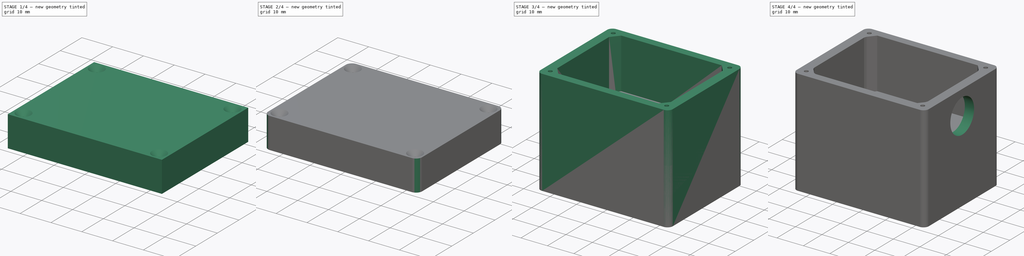
[diagram: build sequence overview — one tinted view per stage of 4, left to right]
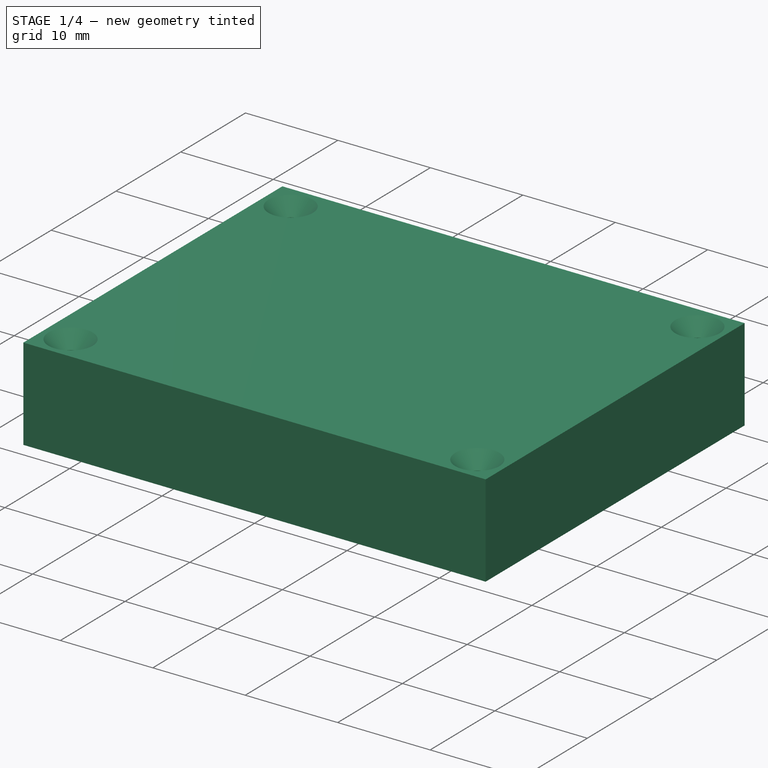
[diagram: stage 1 of 4 — iso view after this stage's code; geometry added in this stage tinted green]
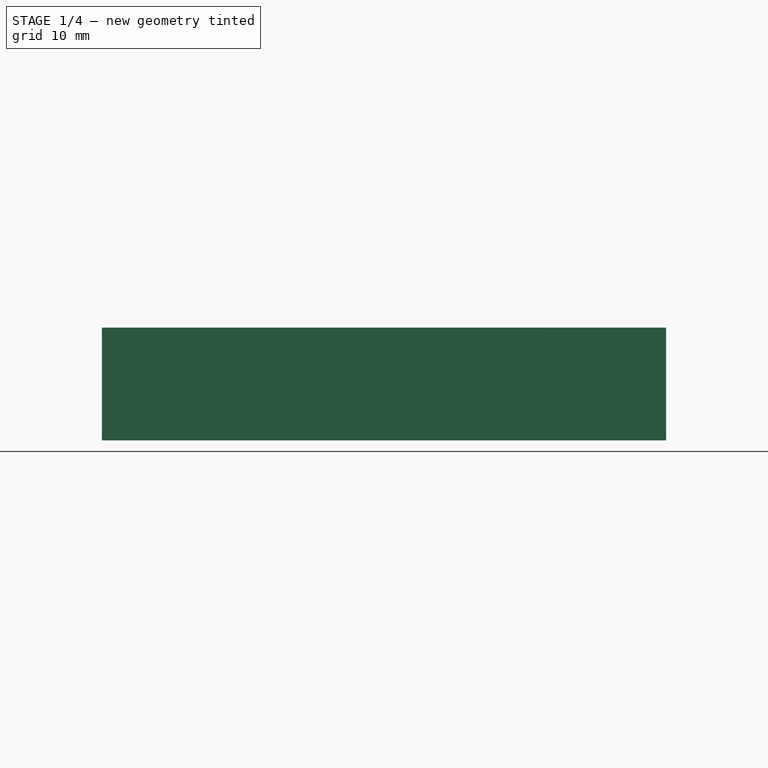
[diagram: stage 1 of 4 — front view after this stage's code; geometry added in this stage tinted green]
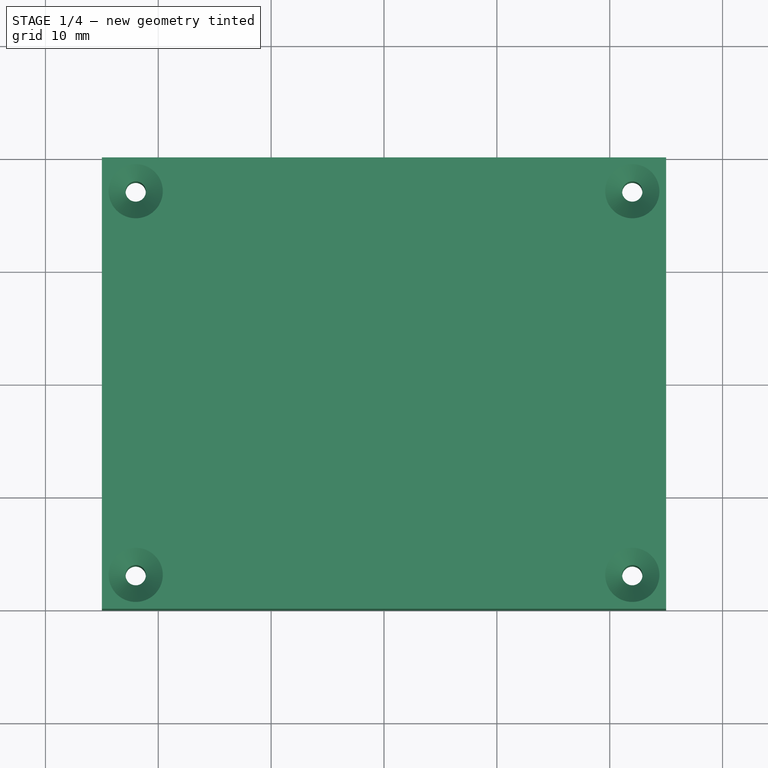
[diagram: stage 1 of 4 — top view after this stage's code; geometry added in this stage tinted green]
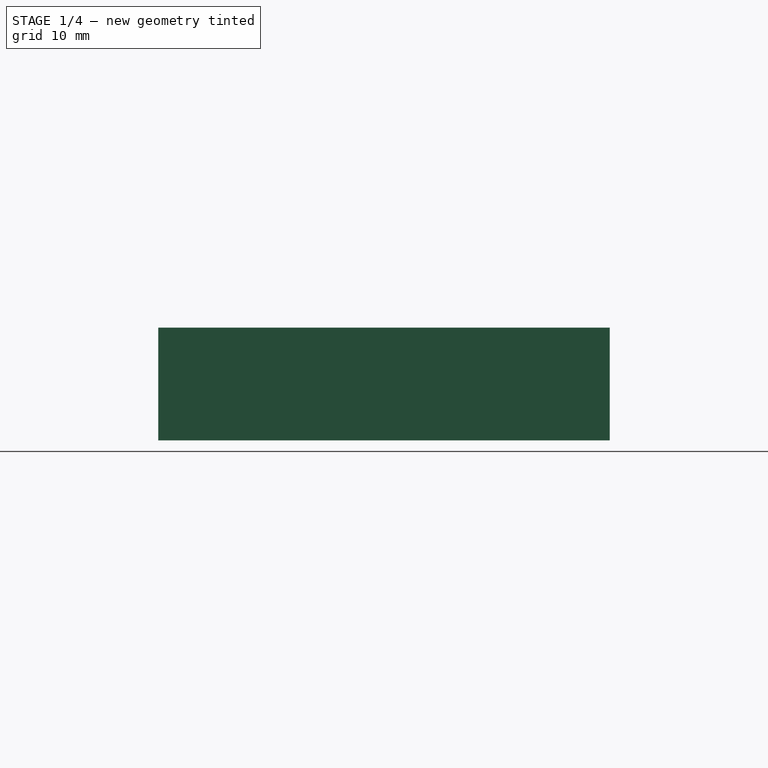
[diagram: stage 1 of 4 — right view after this stage's code; geometry added in this stage tinted green]
FCSTD DOCUMENT  (FreeCAD 0.19R24291 (Git))
Label: servo
License: All rights reserved
LicenseURL: http://en.wikipedia.org/wiki/All_rights_reserved
objects: Sketcher::SketchObject×9, PartDesign::Pocket×5, PartDesign::Pad×4, PartDesign::Chamfer×3, PartDesign::Fillet×2, PartDesign::Body×2
note: 39 computed .brp shape members not serialized (recipe doc carries the construction recipe); baked Part::Feature solids carry a one-line shape summary decoded from their .brp

FEATURE [PartDesign::Body] Body
  Group = -> [Sketch,Pad,Sketch001,Pocket,Fillet,Chamfer,Sketch002,Pocket001,Sketch003,Pocket002,Sketch004,Pad001]
  Origin = -> Origin
  Tip = -> Pad001
FEATURE [Sketcher::SketchObject] Sketch005
  FullyConstrained = true
  MapMode = 5
  Support = -> [XY_Plane001]
  sketch-geometry (4):
    g0: LineSegment StartX=-25 StartY=20 StartZ=0 EndX=25 EndY=20 EndZ=0
    g1: LineSegment StartX=25 StartY=20 StartZ=0 EndX=25 EndY=-20 EndZ=0
    g2: LineSegment StartX=25 StartY=-20 StartZ=0 EndX=-25 EndY=-20 EndZ=0
    g3: LineSegment StartX=-25 StartY=-20 StartZ=0 EndX=-25 EndY=20 EndZ=0
  constraints (10):
    c: Coincident(g0,g1)
    c: Coincident(g1,g2)
    c: Coincident(g2,g3)
    c: Coincident(g3,g0)
    c: Horizontal(g2)
    c: Vertical(g1)
    c: DistanceX(g0,g0) = 50
    c: DistanceY(g1,g1) = 40
    c: Symmetric(g0,g0,g-2)
    c: Symmetric(g2,g0,g-1)
FEATURE [PartDesign::Pad] Pad003
  Direction = (1,1,1)
  Length = 10
  Length2 = 100
  Profile = -> Sketch005
  Refine = true
  Type = 0
FEATURE [Sketcher::SketchObject] Sketch007
  AttachmentOffset = pos=(0,0,8) rot=(0,0,1;0rad)
  FullyConstrained = true
  MapMode = 5
  Placement = pos=(0,0,8) rot=(0,0,1;0rad)
  Support = -> [XY_Plane001]
  sketch-geometry (8):
    g0: LineSegment StartX=-19 StartY=17 StartZ=0 EndX=19 EndY=17 EndZ=0
    g1: LineSegment StartX=19 StartY=17 StartZ=0 EndX=21.5 EndY=14 EndZ=0
    g2: LineSegment StartX=19 StartY=-17 StartZ=0 EndX=-19 EndY=-17 EndZ=0
    g3: LineSegment StartX=-19 StartY=-17 StartZ=0 EndX=-21.5 EndY=-14 EndZ=0
    g4: LineSegment StartX=-21.5 StartY=-14 StartZ=0 EndX=-21.5 EndY=14 EndZ=0
    g5: LineSegment StartX=-21.5 StartY=14 StartZ=0 EndX=-19 EndY=17 EndZ=0
    g6: LineSegment StartX=21.5 StartY=14 StartZ=0 EndX=21.5 EndY=-14 EndZ=0
    g7: LineSegment StartX=21.5 StartY=-14 StartZ=0 EndX=19 EndY=-17 EndZ=0
  constraints (18):
    c: Coincident(g1,g0)
    c: Coincident(g3,g2)
    c: Coincident(g4,g3)
    c: Coincident(g5,g4)
    c: Coincident(g5,g0)
    c: Coincident(g6,g1)
    c: DistanceX(g0,g0) = 38
    c: DistanceY(g6,g6) = 28
    c: DistanceY(g-1,g0) = 17
    c: DistanceX(g0,g1) = 2.5
    c: Symmetric(g0,g2,g-1)
    c: Symmetric(g1,g4,g-2)
    c: Symmetric(g0,g2,g-1)
    c: Symmetric(g4,g3,g-1)
    c: Symmetric(g7,g2,g-2)
    c: Symmetric(g0,g0,g-2)
    c: Coincident(g7,g6)
    c: Symmetric(g6,g3,g-2)
FEATURE [PartDesign::Pocket] Pocket004
  BaseFeature = -> Pad003
  Length = 10
  Length2 = 100
  Profile = -> Sketch007
  Refine = true
  Type = 0
FEATURE [Sketcher::SketchObject] Sketch006
  FullyConstrained = true
  MapMode = 5
  Placement = pos=(0,0,10) rot=(0,0,1;0rad)
  Support = -> [Pocket004]
  sketch-geometry (4):
    g0: Circle CenterX=-22 CenterY=17 CenterZ=0 NormalX=0 NormalY=0 NormalZ=1 AngleXU=0 Radius=0.9
    g1: Circle CenterX=22 CenterY=17 CenterZ=0 NormalX=0 NormalY=0 NormalZ=1 AngleXU=0 Radius=0.9
    g2: Circle CenterX=-22 CenterY=-17 CenterZ=0 NormalX=0 NormalY=0 NormalZ=1 AngleXU=0 Radius=0.9
    g3: Circle CenterX=22 CenterY=-17 CenterZ=0 NormalX=0 NormalY=0 NormalZ=1 AngleXU=0 Radius=0.9
  constraints (9):
    c: Diameter(g0) = 1.8
    c: DistanceX(g0) = -22
    c: DistanceY(g0) = 17
    c: Symmetric(g0,g1,g-2)
    c: Symmetric(g1,g3,g-1)
    c: Symmetric(g0,g2,g-1)
    c: Equal(g0,g1)
    c: Equal(g1,g3)
    c: Equal(g3,g2)
FEATURE [PartDesign::Pocket] Pocket003
  BaseFeature = -> Pocket004
  Length = 10
  Length2 = 100
  Profile = -> Sketch006
  Refine = true
  Type = 0
FEATURE [PartDesign::Chamfer] Chamfer002
  Angle = 45
  Base = -> Pocket003 [Edge28,Edge26,Edge25,Edge27]
  BaseFeature = -> Pocket003
  ChamferType = 0
  FlipDirection = false
  Refine = true
  Size = 1.5
  Size2 = 1
  SupportTransform = false
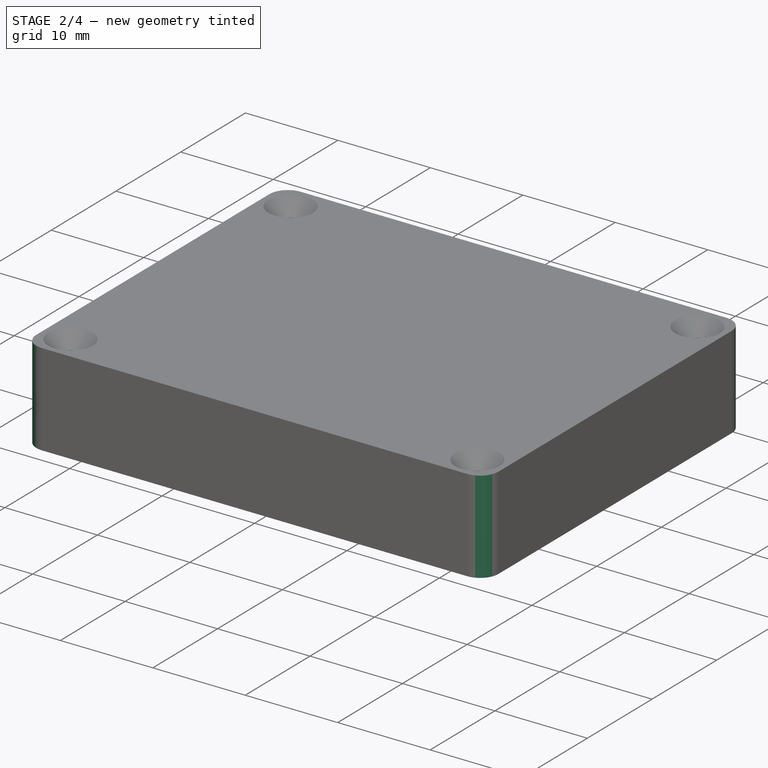
[diagram: stage 2 of 4 — iso view after this stage's code; geometry added in this stage tinted green]
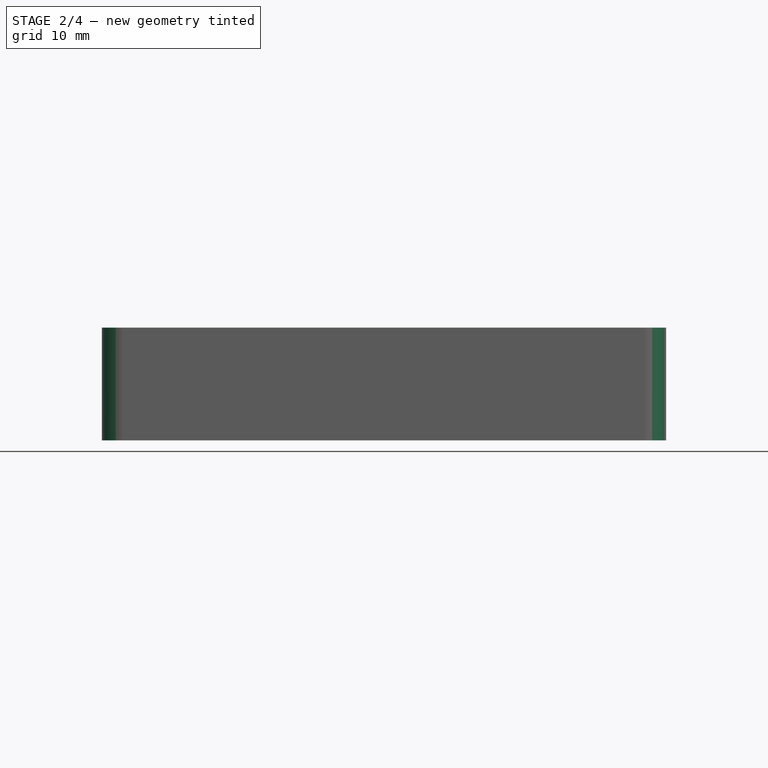
[diagram: stage 2 of 4 — front view after this stage's code; geometry added in this stage tinted green]
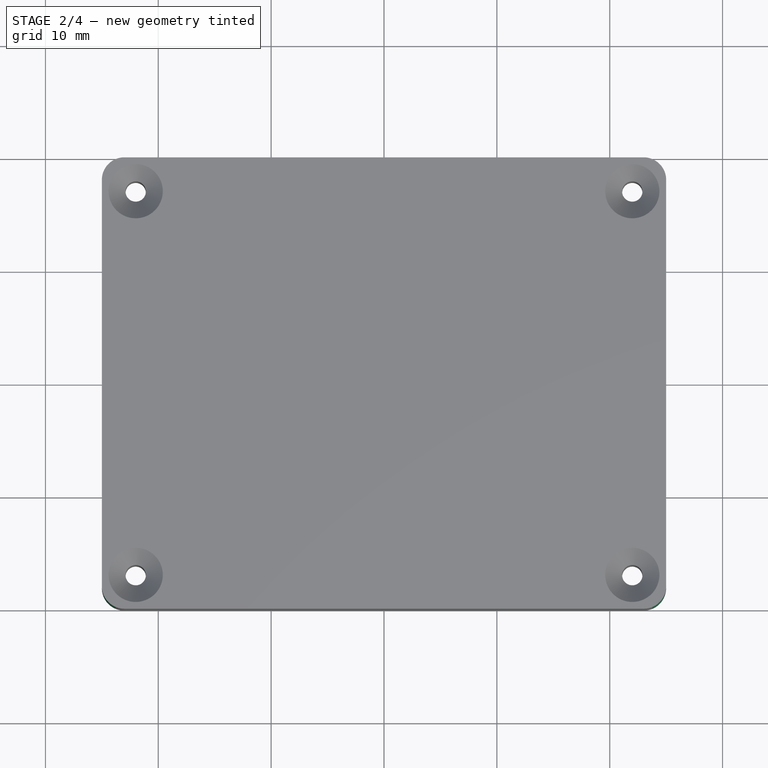
[diagram: stage 2 of 4 — top view after this stage's code; geometry added in this stage tinted green]
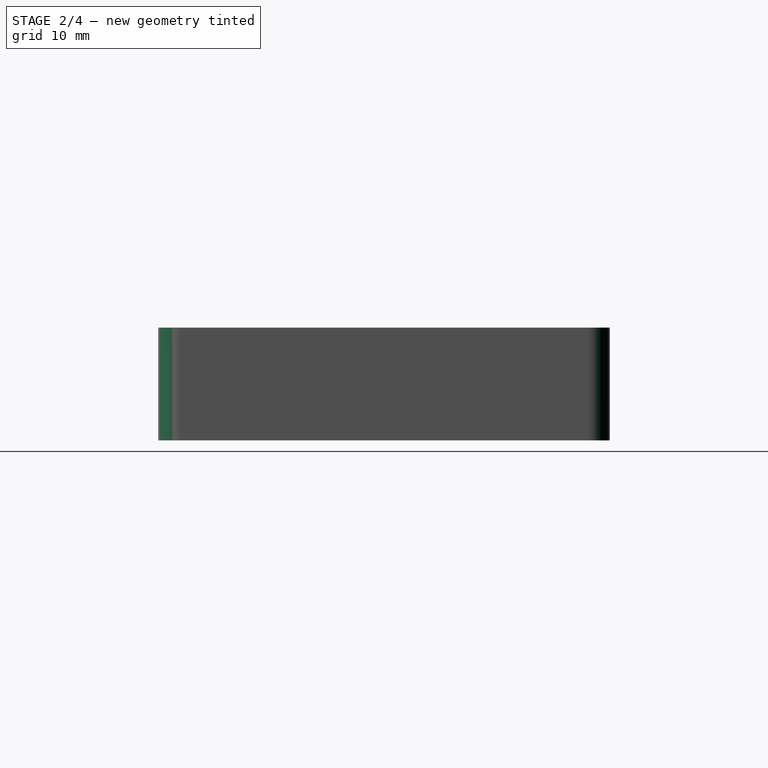
[diagram: stage 2 of 4 — right view after this stage's code; geometry added in this stage tinted green]
FEATURE [PartDesign::Fillet] Fillet001
  Base = -> Chamfer002 [Edge14,Edge16,Edge12,Edge11]
  BaseFeature = -> Chamfer002
  Radius = 2
  Refine = true
  SupportTransform = false
FEATURE [PartDesign::Chamfer] Chamfer001
  Angle = 45
  Base = -> Fillet001 [Edge57,Edge61,Edge54,Edge55,Edge65,Edge67,Edge63,Edge59]
  BaseFeature = -> Fillet001
  ChamferType = 0
  FlipDirection = false
  Refine = true
  Size = 0.5
  Size2 = 1
  SupportTransform = false
FEATURE [Sketcher::SketchObject] Sketch008
  FullyConstrained = true
  MapMode = 5
  Placement = pos=(0,0,8) rot=(1,0,0;3.14159rad)
  Support = -> [Chamfer001]
  sketch-geometry (8):
    g0: LineSegment StartX=7.5 StartY=9.8 StartZ=0 EndX=13 EndY=9.8 EndZ=0
    g1: LineSegment StartX=13 StartY=9.8 StartZ=0 EndX=13 EndY=-10.2 EndZ=0
    g2: LineSegment StartX=13 StartY=-10.2 StartZ=0 EndX=7.5 EndY=-10.2 EndZ=0
    g3: LineSegment StartX=7.5 StartY=-10.2 StartZ=0 EndX=7.5 EndY=9.8 EndZ=0
    g4: LineSegment StartX=9 StartY=7.8 StartZ=0 EndX=11.5 EndY=7.8 EndZ=0
    g5: LineSegment StartX=11.5 StartY=7.8 StartZ=0 EndX=11.5 EndY=-8.5 EndZ=0
    g6: LineSegment StartX=11.5 StartY=-8.5 StartZ=0 EndX=9 EndY=-8.5 EndZ=0
    g7: LineSegment StartX=9 StartY=-8.5 StartZ=0 EndX=9 EndY=7.8 EndZ=0
  constraints (24):
    c: Coincident(g0,g1)
    c: Coincident(g1,g2)
    c: Coincident(g2,g3)
    c: Coincident(g3,g0)
    c: Horizontal(g0)
    c: Horizontal(g2)
    c: Vertical(g1)
    c: Vertical(g3)
    c: Coincident(g4,g5)
    c: Coincident(g5,g6)
    c: Coincident(g6,g7)
    c: Coincident(g7,g4)
    c: Horizontal(g4)
    c: Horizontal(g6)
    c: Vertical(g5)
    c: Vertical(g7)
    c: Distance(g0,g4) = 2.5
    c: DistanceX(g0) = 7.5
    c: DistanceY(g0) = 9.8
    c: DistanceX(g6) = 9
    c: DistanceY(g6) = -8.5
    c: DistanceY(g1,g1) = 20
    c: DistanceX(g4,g4) = 2.5
    c: DistanceX(g0,g0) = 5.5
FEATURE [PartDesign::Pad] Pad002
  BaseFeature = -> Chamfer001
  Direction = (1,1,1)
  Length = 8
  Length2 = 100
  Profile = -> Sketch008
  Refine = true
  Type = 0
FEATURE [PartDesign::Body] Body001  label="Body2"
  Group = -> [Sketch005,Pad003,Sketch007,Pocket004,Sketch006,Pocket003,Chamfer002,Fillet001,Chamfer001,Sketch008,Pad002]
  Origin = -> Origin001
  Placement = pos=(0,0,30) rot=(0,0,1;0rad)
  Tip = -> Pad002
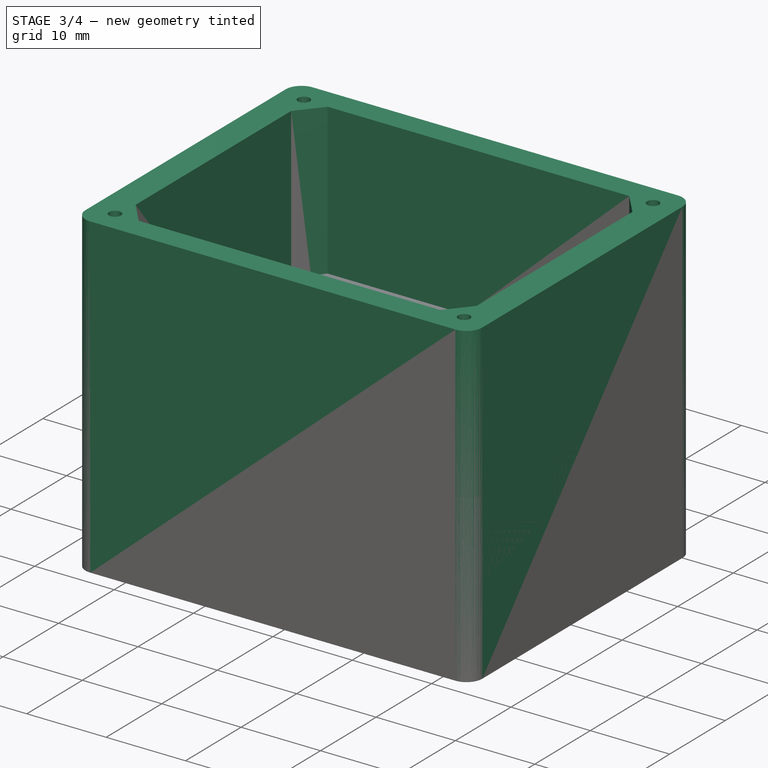
[diagram: stage 3 of 4 — iso view after this stage's code; geometry added in this stage tinted green]
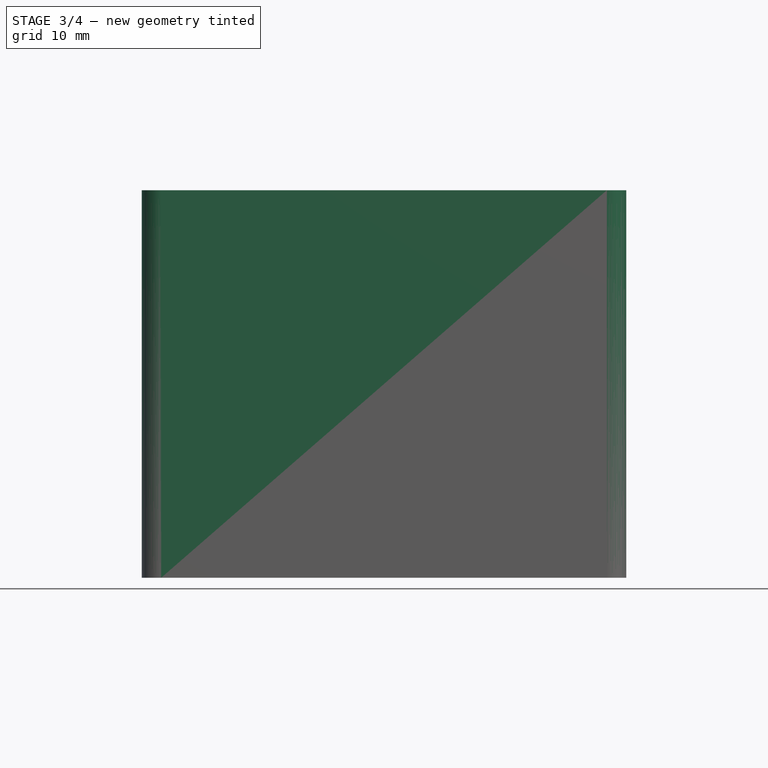
[diagram: stage 3 of 4 — front view after this stage's code; geometry added in this stage tinted green]
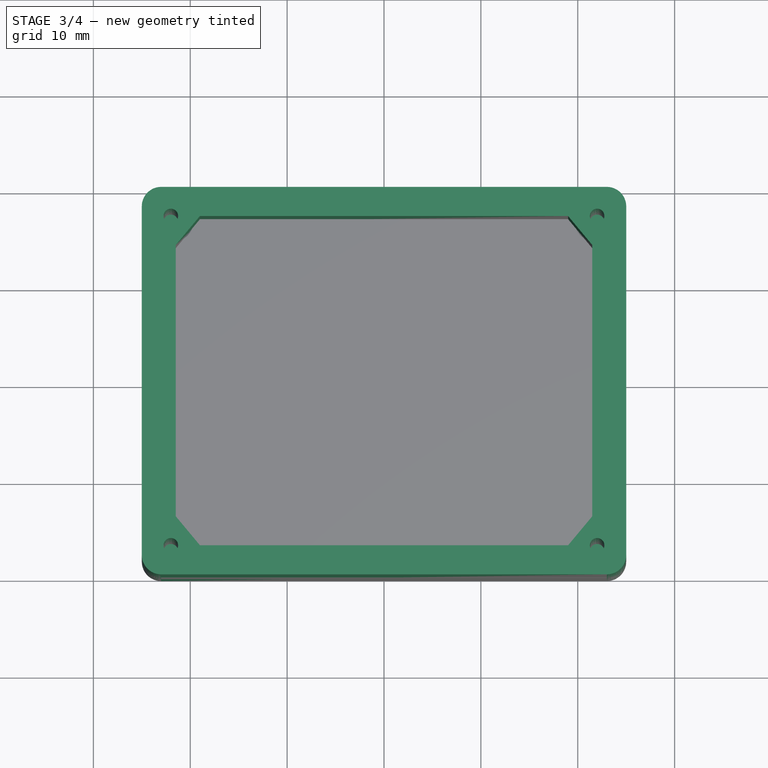
[diagram: stage 3 of 4 — top view after this stage's code; geometry added in this stage tinted green]
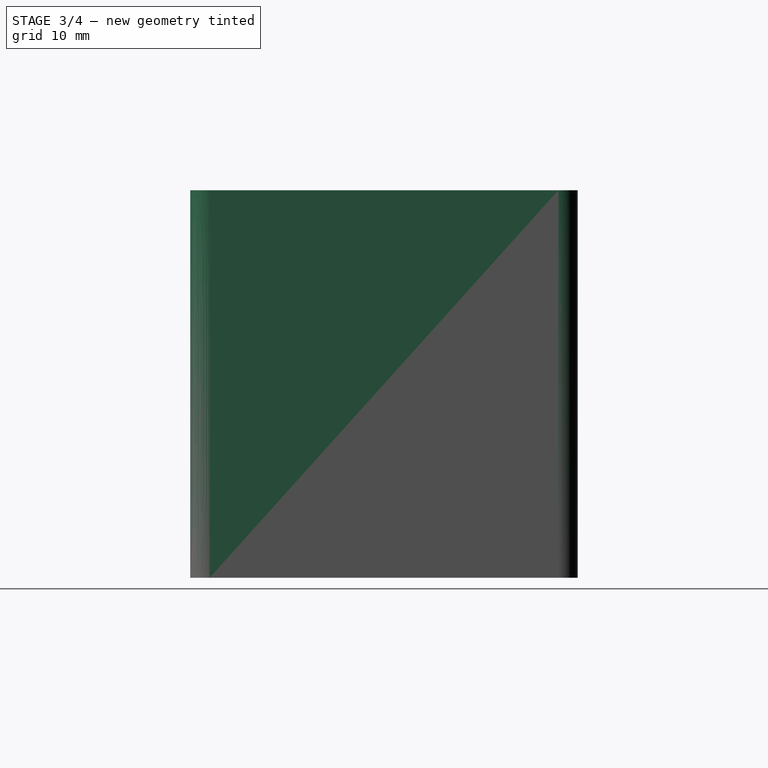
[diagram: stage 3 of 4 — right view after this stage's code; geometry added in this stage tinted green]
FEATURE [Sketcher::SketchObject] Sketch
  AttachmentOffset = pos=(0,0,-11) rot=(0,0,1;0rad)
  FullyConstrained = true
  MapMode = 5
  Placement = pos=(0,0,-11) rot=(0,0,1;0rad)
  Support = -> [XY_Plane]
  sketch-geometry (4):
    g0: LineSegment StartX=-25 StartY=20 StartZ=0 EndX=25 EndY=20 EndZ=0
    g1: LineSegment StartX=25 StartY=20 StartZ=0 EndX=25 EndY=-20 EndZ=0
    g2: LineSegment StartX=25 StartY=-20 StartZ=0 EndX=-25 EndY=-20 EndZ=0
    g3: LineSegment StartX=-25 StartY=-20 StartZ=0 EndX=-25 EndY=20 EndZ=0
  constraints (10):
    c: Coincident(g0,g1)
    c: Coincident(g1,g2)
    c: Coincident(g2,g3)
    c: Coincident(g3,g0)
    c: Horizontal(g2)
    c: Vertical(g1)
    c: DistanceX(g0,g0) = 50
    c: DistanceY(g1,g1) = 40
    c: Symmetric(g0,g0,g-2)
    c: Symmetric(g2,g0,g-1)
FEATURE [PartDesign::Pad] Pad
  Direction = (1,1,1)
  Length = 40
  Length2 = 100
  Profile = -> Sketch
  Refine = true
  Type = 0
FEATURE [Sketcher::SketchObject] Sketch001
  AttachmentOffset = pos=(0,0,30) rot=(0,0,1;0rad)
  FullyConstrained = true
  MapMode = 5
  Placement = pos=(0,0,30) rot=(0,0,1;0rad)
  Support = -> [XY_Plane]
  sketch-geometry (12):
    g0: LineSegment StartX=-19 StartY=17 StartZ=0 EndX=19 EndY=17 EndZ=0
    g1: LineSegment StartX=19 StartY=17 StartZ=0 EndX=21.5 EndY=14 EndZ=0
    g2: LineSegment StartX=21.5 StartY=14 StartZ=0 EndX=21.5 EndY=-14 EndZ=0
    g3: LineSegment StartX=21.5 StartY=-14 StartZ=0 EndX=19 EndY=-17 EndZ=0
    g4: LineSegment StartX=19 StartY=-17 StartZ=0 EndX=-19 EndY=-17 EndZ=0
    g5: LineSegment StartX=-19 StartY=-17 StartZ=0 EndX=-21.5 EndY=-14 EndZ=0
    g6: LineSegment StartX=-21.5 StartY=-14 StartZ=0 EndX=-21.5 EndY=14 EndZ=0
    g7: LineSegment StartX=-19 StartY=17 StartZ=0 EndX=-21.5 EndY=14 EndZ=0
    g8: Circle CenterX=-22 CenterY=17 CenterZ=0 NormalX=0 NormalY=0 NormalZ=1 AngleXU=0 Radius=0.75
    g9: Circle CenterX=22 CenterY=17 CenterZ=0 NormalX=0 NormalY=0 NormalZ=1 AngleXU=0 Radius=0.75
    g10: Circle CenterX=-22 CenterY=-17 CenterZ=0 NormalX=0 NormalY=0 NormalZ=1 AngleXU=0 Radius=0.75
    g11: Circle CenterX=22 CenterY=-17 CenterZ=0 NormalX=0 NormalY=0 NormalZ=1 AngleXU=0 Radius=0.75
  constraints (27):
    c: Coincident(g1,g0)
    c: Coincident(g2,g1)
    c: Coincident(g3,g2)
    c: Coincident(g6,g5)
    c: Coincident(g7,g0)
    c: Coincident(g7,g6)
    c: Coincident(g5,g4)
    c: Coincident(g4,g3)
    c: DistanceX(g0,g0) = 38
    c: DistanceX(g1,g1) = 2.5
    c: DistanceY(g2,g2) = 28
    c: Symmetric(g6,g1,g-2)
    c: Symmetric(g0,g4,g-1)
    c: Symmetric(g0,g0,g-2)
    c: Symmetric(g6,g5,g-1)
    c: Symmetric(g5,g2,g-2)
    c: Symmetric(g4,g3,g-2)
    c: DistanceY(g-1,g0) = 17
    c: Diameter(g8) = 1.5
    c: DistanceX(g8) = -22
    c: DistanceY(g8) = 17
    c: Equal(g8,g9) = 1.5
    c: Equal(g8,g10) = 1.5
    c: Equal(g8,g11) = 1.5
    c: Symmetric(g8,g9,g-2)
    c: Symmetric(g9,g11,g-1)
    c: Symmetric(g11,g10,g-2)
FEATURE [PartDesign::Pocket] Pocket
  BaseFeature = -> Pad
  Length = 36
  Length2 = 100
  Profile = -> Sketch001
  Refine = true
  Type = 0
FEATURE [PartDesign::Fillet] Fillet
  Base = -> Pocket [Edge5,Edge8,Edge1,Edge2]
  BaseFeature = -> Pocket
  Radius = 2
  Refine = true
  SupportTransform = false
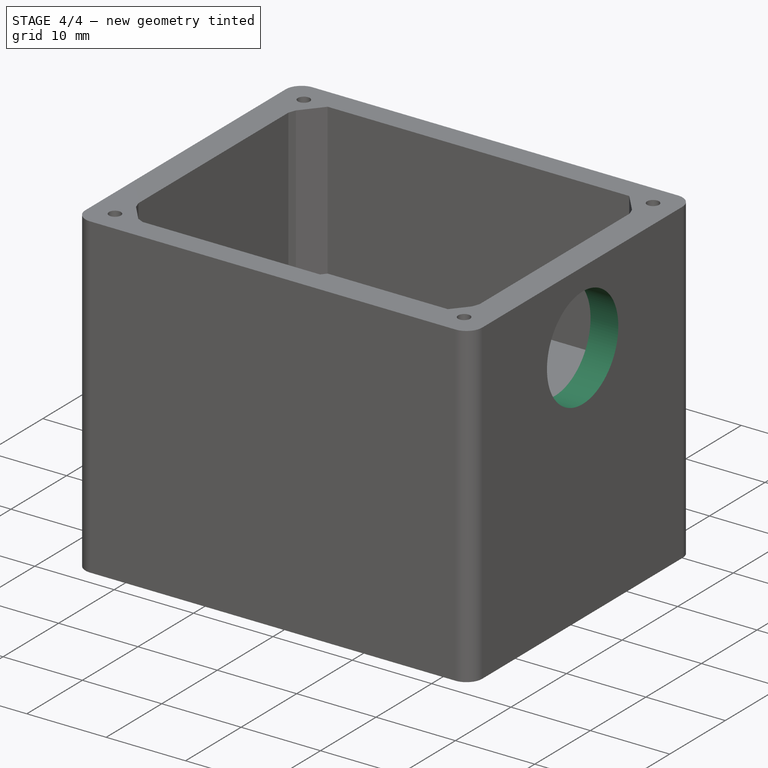
[diagram: stage 4 of 4 — iso view after this stage's code; geometry added in this stage tinted green]
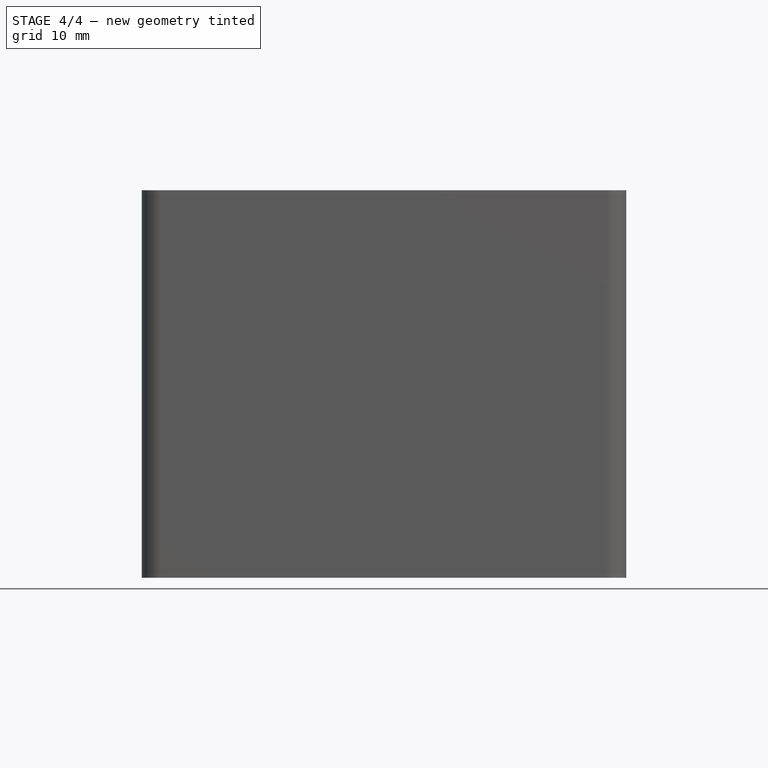
[diagram: stage 4 of 4 — front view after this stage's code; geometry added in this stage tinted green]
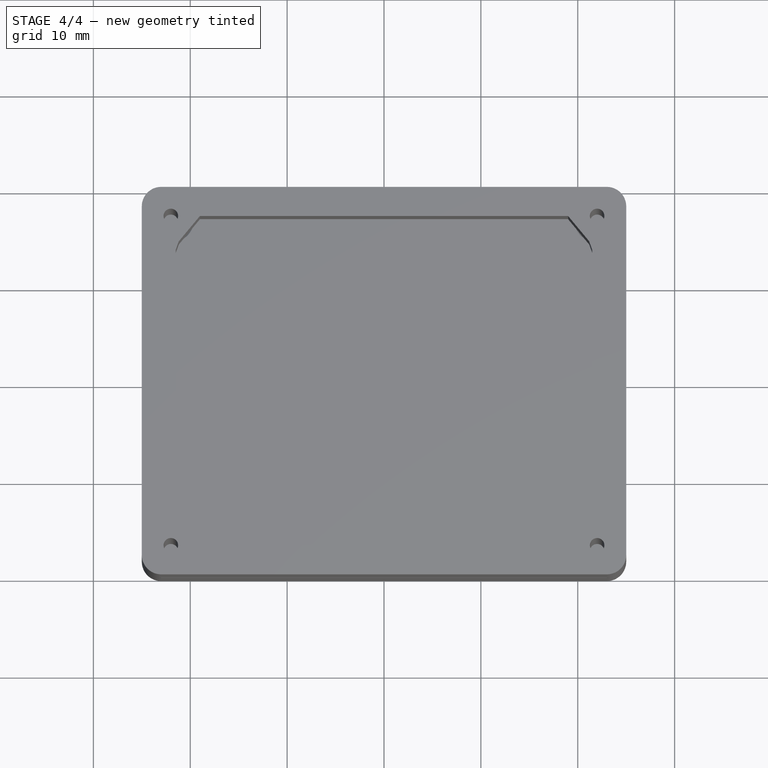
[diagram: stage 4 of 4 — top view after this stage's code; geometry added in this stage tinted green]
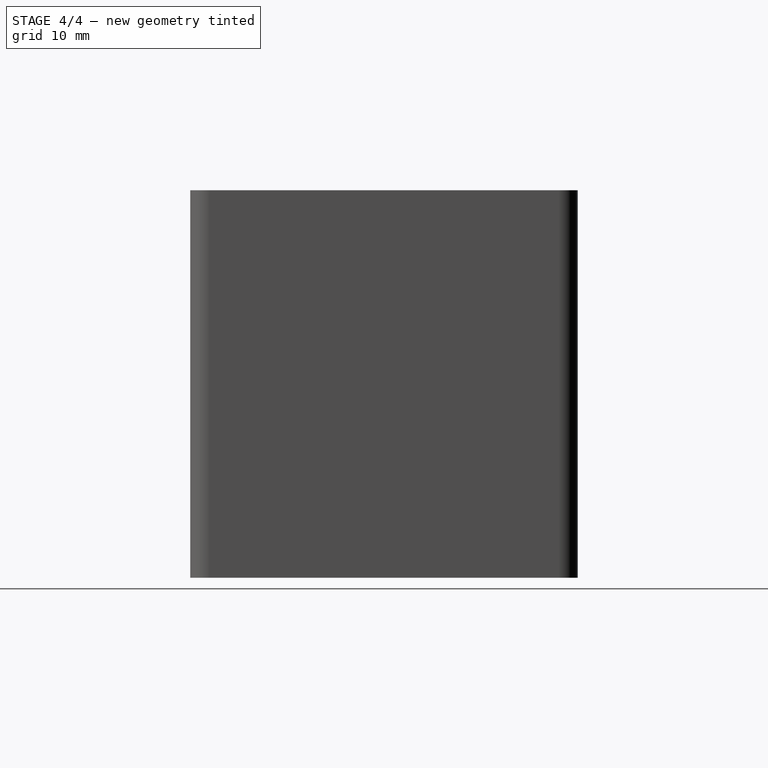
[diagram: stage 4 of 4 — right view after this stage's code; geometry added in this stage tinted green]
FEATURE [PartDesign::Chamfer] Chamfer
  Angle = 45
  Base = -> Fillet [Edge54,Edge52,Edge56,Edge43,Edge44,Edge46,Edge48,Edge50]
  BaseFeature = -> Fillet
  ChamferType = 0
  FlipDirection = false
  Refine = true
  Size = 0.5
  Size2 = 1
  SupportTransform = false
FEATURE [Sketcher::SketchObject] Sketch002
  AttachmentOffset = pos=(0,0,1) rot=(0,0,1;0rad)
  FullyConstrained = true
  MapMode = 5
  Placement = pos=(25,0,0) rot=(0.57735,0.57735,0.57735;2.0944rad)
  Support = -> [Chamfer]
  sketch-geometry (1):
    g0: Circle CenterX=-0.14 CenterY=16 CenterZ=0 NormalX=0 NormalY=0 NormalZ=1 AngleXU=0 Radius=8
  constraints (3):
    c: Radius(g0) = 8
    c: DistanceX(g0) = -0.14
    c: DistanceY(g0) = 16
FEATURE [PartDesign::Pocket] Pocket001
  BaseFeature = -> Chamfer
  Length = 6
  Length2 = 100
  Profile = -> Sketch002
  Refine = true
  Type = 0
FEATURE [Sketcher::SketchObject] Sketch003
  FullyConstrained = true
  MapMode = 5
  Placement = pos=(-25,0,0) rot=(0.57735,-0.57735,-0.57735;2.0944rad)
  Support = -> [Pocket001]
  sketch-geometry (1):
    g0: Circle CenterX=-0.028 CenterY=1.5 CenterZ=0 NormalX=0 NormalY=0 NormalZ=1 AngleXU=0 Radius=5
  constraints (3):
    c: Radius(g0) = 5
    c: DistanceX(g0) = -0.028
    c: DistanceY(g0) = 1.5
FEATURE [PartDesign::Pocket] Pocket002
  BaseFeature = -> Pocket001
  Length = 6
  Length2 = 100
  Profile = -> Sketch003
  Refine = true
  Type = 0
FEATURE [Sketcher::SketchObject] Sketch004
  FullyConstrained = true
  MapMode = 5
  Placement = pos=(0,0,-6) rot=(0,0,1;0rad)
  Support = -> [Pocket001]
  sketch-geometry (8):
    g0: LineSegment StartX=7.5 StartY=9.8 StartZ=0 EndX=13 EndY=9.8 EndZ=0
    g1: LineSegment StartX=13 StartY=9.8 StartZ=0 EndX=13 EndY=-10.2 EndZ=0
    g2: LineSegment StartX=13 StartY=-10.2 StartZ=0 EndX=7.5 EndY=-10.2 EndZ=0
    g3: LineSegment StartX=7.5 StartY=-10.2 StartZ=0 EndX=7.5 EndY=9.8 EndZ=0
    g4: LineSegment StartX=9 StartY=7.8 StartZ=0 EndX=11.5 EndY=7.8 EndZ=0
    g5: LineSegment StartX=11.5 StartY=7.8 StartZ=0 EndX=11.5 EndY=-8.5 EndZ=0
    g6: LineSegment StartX=11.5 StartY=-8.5 StartZ=0 EndX=9 EndY=-8.5 EndZ=0
    g7: LineSegment StartX=9 StartY=-8.5 StartZ=0 EndX=9 EndY=7.8 EndZ=0
  constraints (24):
    c: Coincident(g0,g1)
    c: Coincident(g1,g2)
    c: Coincident(g2,g3)
    c: Coincident(g3,g0)
    c: Horizontal(g0)
    c: Horizontal(g2)
    c: Vertical(g1)
    c: Vertical(g3)
    c: Coincident(g4,g5)
    c: Coincident(g5,g6)
    c: Coincident(g6,g7)
    c: Coincident(g7,g4)
    c: Horizontal(g4)
    c: Horizontal(g6)
    c: Vertical(g5)
    c: Vertical(g7)
    c: Distance(g0,g4) = 2.5
    c: DistanceX(g0) = 7.5
    c: DistanceY(g0) = 9.8
    c: DistanceX(g6) = 9
    c: DistanceY(g6) = -8.5
    c: DistanceX(g4,g4) = 2.5
    c: DistanceX(g0,g0) = 5.5
    c: DistanceY(g1,g1) = 20
FEATURE [PartDesign::Pad] Pad001
  BaseFeature = -> Pocket002
  Direction = (1,1,1)
  Length = 10
  Length2 = 100
  Profile = -> Sketch004
  Refine = true
  Type = 0
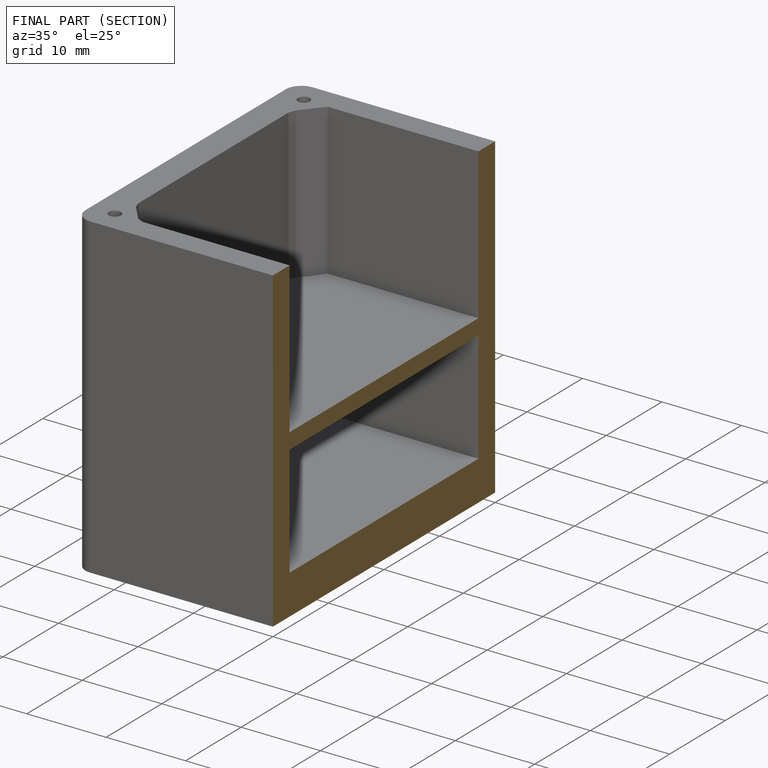
[diagram: finished part — half-section view (interior)]
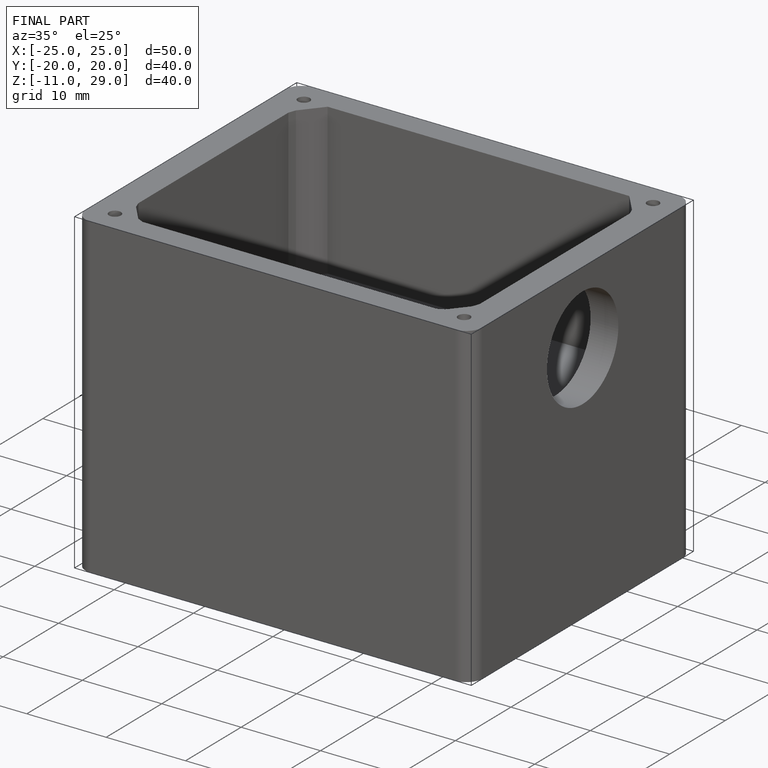
[diagram: finished part — iso view with bounding-box wireframe]
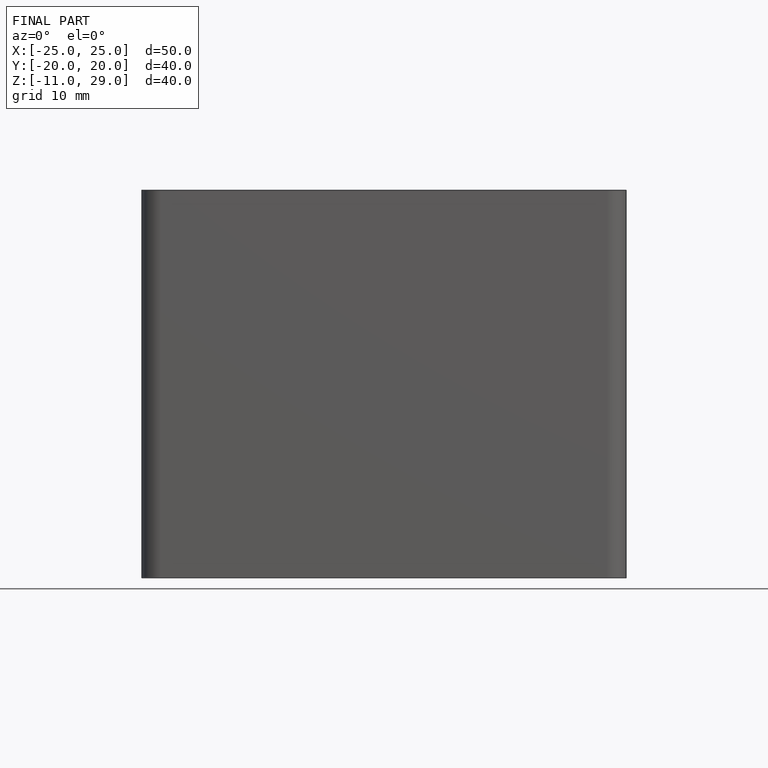
[diagram: finished part — front view with bounding-box wireframe]
